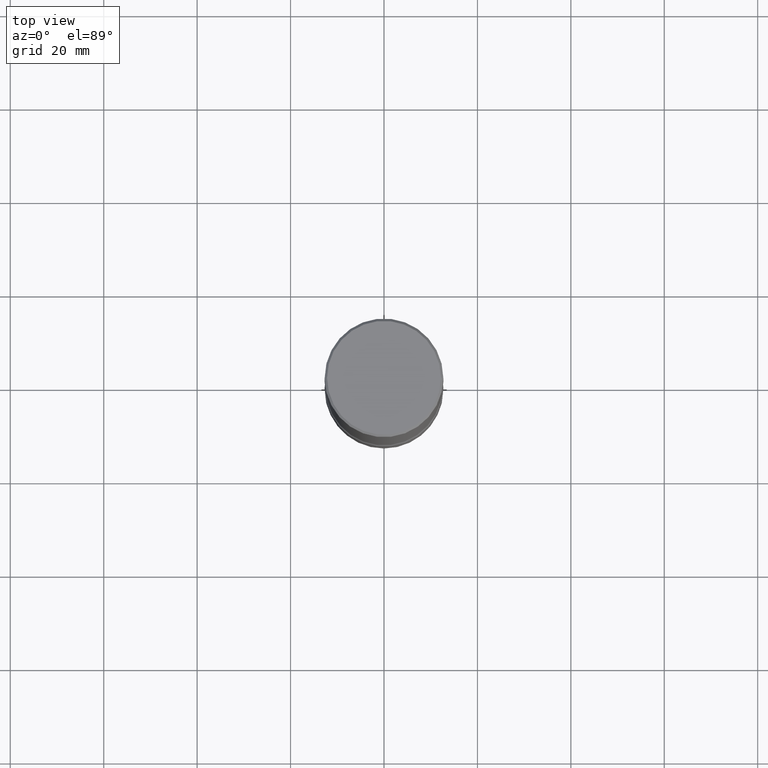
[diagram: clean part render]
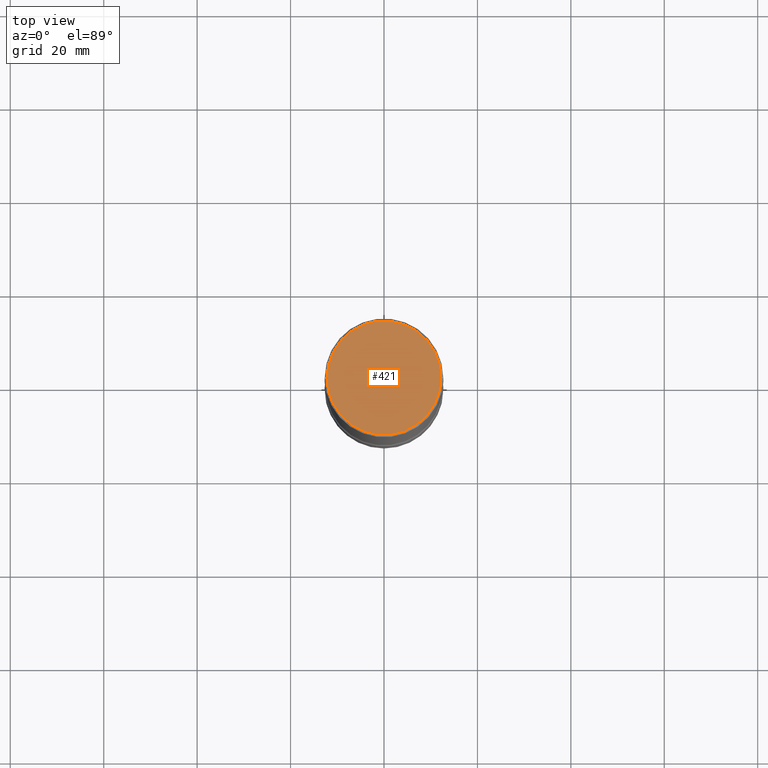
[diagram: same view with one face highlighted and labeled with its STEP entity id]
A machine part, top view. The second image highlights one B-rep face of the part: STEP entity #421.
In plain terms, the highlighted planar face has unit normal (-0, 0, 1).
Its self-contained STEP definition (entity closure, byte-faithful):
#17 = PLANE ( 'NONE',  #323 ) ;
#61 = EDGE_CURVE ( 'NONE', #263, #302, #381, .T. ) ;
#95 = DIRECTION ( 'NONE',  ( -2.438088387897960049E-29, 3.491481338843145188E-15, 1.000000000000000000 ) ) ;
#98 = DIRECTION ( 'NONE',  ( -1.000000000000000000, 6.982962677686267499E-15, -4.876176775795936353E-29 ) ) ;
#142 = CARTESIAN_POINT ( 'NONE',  ( -0.4799999999999996492, 3.351822085289405970E-15, -2.340564852382047723E-29 ) ) ;
#186 = CARTESIAN_POINT ( 'NONE',  ( 0.000000000000000000, 0.000000000000000000, 0.000000000000000000 ) ) ;
#192 = DIRECTION ( 'NONE',  ( 2.445468806185136597E-29, -3.491481338843145583E-15, -1.000000000000000000 ) ) ;
#240 = EDGE_LOOP ( 'NONE', ( #378, #358 ) ) ;
#261 = AXIS2_PLACEMENT_3D ( 'NONE', #186, #542, #98 ) ;
#263 = VERTEX_POINT ( 'NONE', #497 ) ;
#302 = VERTEX_POINT ( 'NONE', #142 ) ;
#312 = DIRECTION ( 'NONE',  ( -1.000000000000000000, 6.982962677686267499E-15, -4.876176775795936353E-29 ) ) ;
#319 = CARTESIAN_POINT ( 'NONE',  ( 0.000000000000000000, 0.000000000000000000, 0.000000000000000000 ) ) ;
#323 = AXIS2_PLACEMENT_3D ( 'NONE', #502, #95, #541 ) ;
#358 = ORIENTED_EDGE ( 'NONE', *, *, #61, .F. ) ;
#363 = EDGE_CURVE ( 'NONE', #302, #263, #442, .T. ) ;
#378 = ORIENTED_EDGE ( 'NONE', *, *, #363, .F. ) ;
#381 = CIRCLE ( 'NONE', #261, 0.4799999999999996492 ) ;
#406 = AXIS2_PLACEMENT_3D ( 'NONE', #319, #192, #312 ) ;
#421 = ADVANCED_FACE ( 'NONE', ( #545 ), #17, .T. ) ;
#442 = CIRCLE ( 'NONE', #406, 0.4799999999999996492 ) ;
#497 = CARTESIAN_POINT ( 'NONE',  ( 0.4799999999999996492, -3.396558832296480127E-15, 2.359727204893467407E-29 ) ) ;
#502 = CARTESIAN_POINT ( 'NONE',  ( 3.351822085289405181E-15, 0.4799999999999996492, -1.669508273909558064E-15 ) ) ;
#541 = DIRECTION ( 'NONE',  ( 1.000000000000000000, -6.982962677686265922E-15, 4.876176775795935793E-29 ) ) ;
#542 = DIRECTION ( 'NONE',  ( 2.445468806185136597E-29, -3.491481338843145583E-15, -1.000000000000000000 ) ) ;
#545 = FACE_OUTER_BOUND ( 'NONE', #240, .T. ) ;